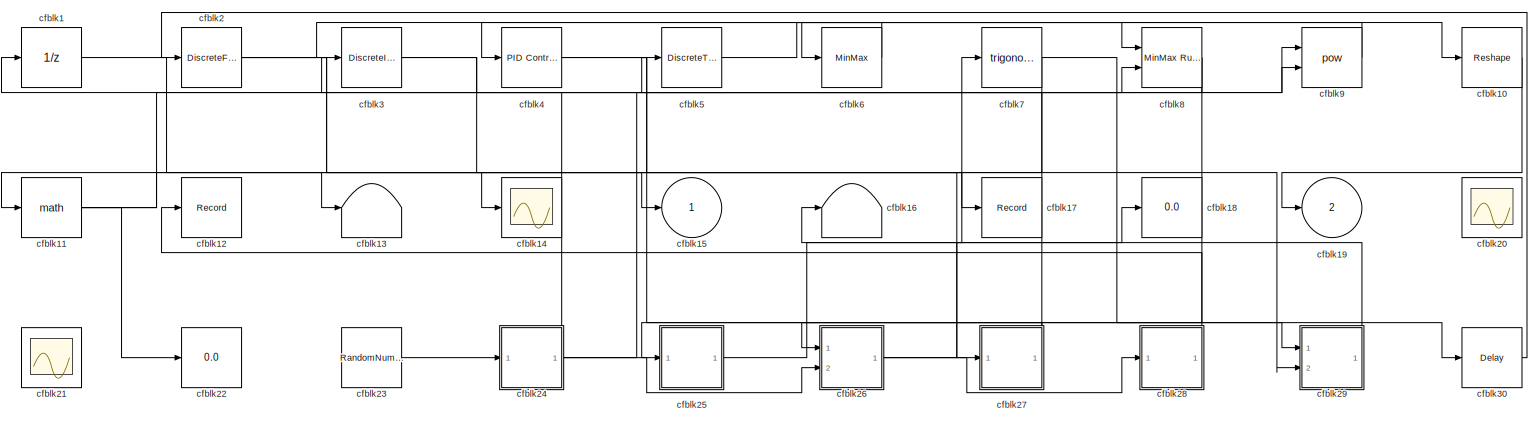
[diagram: root canvas - part 1/1, most of the canvas]
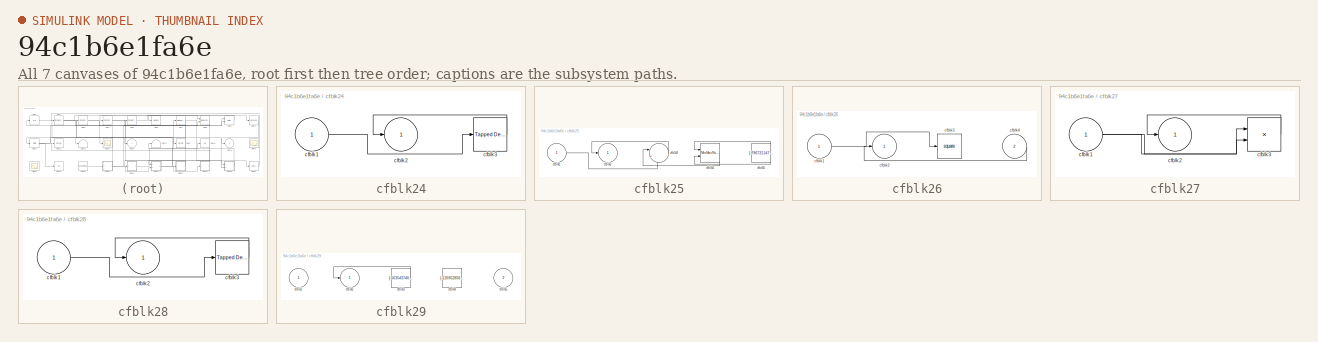
[diagram: thumbnail index - all 7 canvases of the model, root first then tree order]
MODEL slx_94c1b6e1fa6e
KIND model
CONFIG AbsTol = auto
CONFIG EnableMultiTasking = off
CONFIG FixedStep = auto
CONFIG MaxStep = auto
CONFIG MinStep = auto
CONFIG RelTol = 1e-3
CONFIG SampleTimeConstraint = Unconstrained
CONFIG SolverName = VariableStepAuto
CONFIG StartTime = 0.0
CONFIG StopTime = 10.0
BLOCK [UnitDelay] cfblk1
  HasFrameUpgradeWarning = on
BLOCK [Reshape] cfblk10
  Ports = [1, 1]
BLOCK [Math] cfblk11
  Ports = [1, 1]
BLOCK [Record] cfblk12
  FileSettingsInternal = {"entries":[{"content":{"excelSettings":{"content":{},"type":"Streamout.ExcelSettings"}},"type":"Streamout.FileSettingStorage","uuid":"a39cff4f-daf2-4c28-a5b7-ec255e5ac0f6"}],"packageUris":["http://schema.mathworks.com/mf0/streamout_blocks/R2020a"],"version":"1.0"}
  Ports = [1]
  SignalsInternal = {"entries":[{"content":{"signals":[{"content":{"blockPath":["sampleModel141/cfblk12"],"channel":[],"dimensions":[1],"domain":"sampleModel141/cfblk12","lineColor":"#77ac30","plots":[1],"port":1,"sid":[""],"signalID":5043,"signalName":"cfblk28"},"type":"RecordBlkView.Signal","uuid":"52644dd1-6354-4493-8342-73fe0015a786"}]},"type":"RecordBlkView.InputSignals","uuid":"56e0f7c8-4d96-4cb7-bdb7-98e7153da...<+97ch>
  VisualizationBindings = {"sparklinesplugin":{"info":[{"bindingParametersList":[],"subplotID":1}]}}
BLOCK [Terminator] cfblk13
BLOCK [Scope] cfblk14
  Floating = off
  NumInputPorts = 1
  Ports = [1]
BLOCK [Outport] cfblk15
BLOCK [Terminator] cfblk16
BLOCK [Record] cfblk17
  FileSettingsInternal = {"entries":[{"content":{"excelSettings":{"content":{},"type":"Streamout.ExcelSettings"}},"type":"Streamout.FileSettingStorage","uuid":"e404dd9b-bba9-46a7-9a10-97498adcddd8"}],"packageUris":["http://schema.mathworks.com/mf0/streamout_blocks/R2020a"],"version":"1.0"}
  Ports = [1]
  SignalsInternal = {"entries":[{"content":{"signals":[{"content":{"blockPath":["sampleModel141/cfblk17"],"channel":[],"dimensions":[1],"domain":"sampleModel141/cfblk17","lineColor":"#4dbeee","plots":[1],"port":1,"sid":[""],"signalID":5047,"signalName":"cfblk3"},"type":"RecordBlkView.Signal","uuid":"1d29c7ec-9dd9-4208-8596-fda88c1fd611"}]},"type":"RecordBlkView.InputSignals","uuid":"7f42791e-e920-4f00-9e91-acc0e9c6bb...<+96ch>
  VisualizationBindings = {"sparklinesplugin":{"info":[{"bindingParametersList":[],"subplotID":1}]}}
BLOCK [Display] cfblk18
  Decimation = 1
  Ports = [1]
BLOCK [Outport] cfblk19
  Port = 2
BLOCK [DiscreteFir] cfblk2
  InputPortMap = u0
  OutputPortMap = o0
  Ports = [1, 1]
  SampleTime = 1
BLOCK [Scope] cfblk20
  Floating = on
  NumInputPorts = 1
  Ports = []
BLOCK [Scope] cfblk21
  Floating = on
  NumInputPorts = 1
  Ports = []
BLOCK [Display] cfblk22
  Decimation = 1
  Ports = [1]
BLOCK [RandomNumber] cfblk23
  Mean = [51555.156439]
  SampleTime = 0.1
  Seed = [690428430.000000]
  Variance = [47411.369966]
BLOCK [SubSystem] cfblk24
  Ports = [1, 1]
  RequestExecContextInheritance = off
BLOCK [Inport] cfblk24/cfblk1
BLOCK [Outport] cfblk24/cfblk2
BLOCK [Reference] cfblk24/cfblk3  REF=simulink/Discrete/Tapped Delay
  Ports = [1, 1]
  SourceBlock = simulink/Discrete/Tapped Delay
  SourceProductBaseCode = SL
  SourceType = Tapped Delay Line
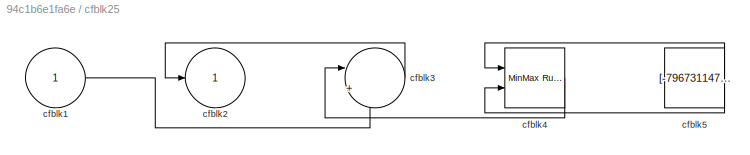
BLOCK [SubSystem] cfblk25
  Ports = [1, 1]
  RequestExecContextInheritance = off
BLOCK [Inport] cfblk25/cfblk1
BLOCK [Outport] cfblk25/cfblk2
BLOCK [Sum] cfblk25/cfblk3
  Inputs = |++
  Ports = [2, 1]
BLOCK [Reference] cfblk25/cfblk4  REF=simulink/Math
Operations/MinMax
Running
Resettable
  Ports = [2, 1]
  SourceBlock = simulink/Math\nOperations/MinMax\nRunning\nResettable
  SourceProductBaseCode = SL
  SourceType = MinMax Running Resettable
BLOCK [Constant] cfblk25/cfblk5
  SampleTime = 1
  Value = [-796731147.547210]
BLOCK [SubSystem] cfblk26
  Ports = [2, 1]
  RequestExecContextInheritance = off
BLOCK [Inport] cfblk26/cfblk1
BLOCK [Outport] cfblk26/cfblk2
BLOCK [Math] cfblk26/cfblk3
  Operator = square
  Ports = [1, 1]
BLOCK [Inport] cfblk26/cfblk4
  Port = 2
BLOCK [SubSystem] cfblk27
  Ports = [1, 1]
  RequestExecContextInheritance = off
BLOCK [Inport] cfblk27/cfblk1
BLOCK [Outport] cfblk27/cfblk2
BLOCK [Product] cfblk27/cfblk3
  Inputs = **
  Ports = [2, 1]
BLOCK [SubSystem] cfblk28
  Ports = [1, 1]
  RequestExecContextInheritance = off
BLOCK [Inport] cfblk28/cfblk1
BLOCK [Outport] cfblk28/cfblk2
BLOCK [Reference] cfblk28/cfblk3  REF=simulink/Discrete/Tapped Delay
  Ports = [1, 1]
  SourceBlock = simulink/Discrete/Tapped Delay
  SourceProductBaseCode = SL
  SourceType = Tapped Delay Line
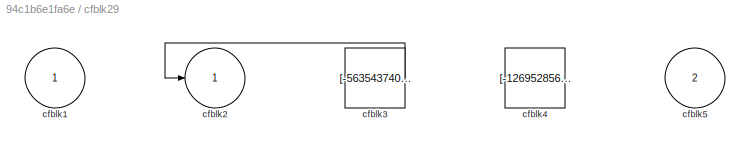
BLOCK [SubSystem] cfblk29
  Ports = [2, 1]
  RequestExecContextInheritance = off
BLOCK [Inport] cfblk29/cfblk1
BLOCK [Outport] cfblk29/cfblk2
BLOCK [Constant] cfblk29/cfblk3
  SampleTime = 1
  Value = [-563543740.597780]
BLOCK [Constant] cfblk29/cfblk4
  SampleTime = 1
  Value = [-126952856.963227]
BLOCK [Inport] cfblk29/cfblk5
  Port = 2
BLOCK [DiscreteIntegrator] cfblk3
  ICPrevOutput = DiscIntNeverNeededParam
  ICPrevScaledInput = DiscIntNeverNeededParam
  InitialConditionSetting = Auto
  Ports = [1, 1]
BLOCK [Delay] cfblk30
  InputPortMap = u0
  Ports = [1, 1]
  SampleTime = 1
BLOCK [Reference] cfblk4  REF=slpidlib/PID Controller
  Ports = [1, 1]
  SourceBlock = slpidlib/PID Controller
  SourceProductBaseCode = SL
  SourceType = PID 1dof
BLOCK [DiscreteTransferFcn] cfblk5
  InputPortMap = u0
  Ports = [1, 1]
  SampleTime = 1
BLOCK [MinMax] cfblk6
  Ports = [1, 1]
BLOCK [Trigonometry] cfblk7
  Ports = [1, 1]
BLOCK [Reference] cfblk8  REF=simulink/Math
Operations/MinMax
Running
Resettable
  Ports = [2, 1]
  SourceBlock = simulink/Math\nOperations/MinMax\nRunning\nResettable
  SourceProductBaseCode = SL
  SourceType = MinMax Running Resettable
BLOCK [Math] cfblk9
  Operator = pow
  Ports = [2, 1]
LINE cfblk10:1 -> cfblk19:1
NET cfblk11:1 -> cfblk14:1, cfblk22:1, cfblk9:1
LINE cfblk1:1 -> cfblk13:1
LINE cfblk23:1 -> cfblk24:1
LINE cfblk24/cfblk1:1 -> cfblk24/cfblk3:1
LINE cfblk24/cfblk3:1 -> cfblk24/cfblk2:1
NET cfblk24:1 -> cfblk26:2, cfblk3:1, cfblk9:2
LINE cfblk25/cfblk1:1 -> cfblk25/cfblk3:2
LINE cfblk25/cfblk3:1 -> cfblk25/cfblk2:1
LINE cfblk25/cfblk4:1 -> cfblk25/cfblk3:1
NET cfblk25/cfblk5:1 -> cfblk25/cfblk4:1, cfblk25/cfblk4:2
LINE cfblk25:1 -> cfblk7:1
LINE cfblk26/cfblk1:1 -> cfblk26/cfblk3:1
LINE cfblk26/cfblk4:1 -> cfblk26/cfblk2:1
NET cfblk26:1 -> cfblk18:1, cfblk28:1
NET cfblk27/cfblk1:1 -> cfblk27/cfblk3:1, cfblk27/cfblk3:2
LINE cfblk27/cfblk3:1 -> cfblk27/cfblk2:1
NET cfblk27:1 -> cfblk26:1, cfblk5:1
LINE cfblk28/cfblk1:1 -> cfblk28/cfblk3:1
LINE cfblk28/cfblk3:1 -> cfblk28/cfblk2:1
LINE cfblk28:1 -> cfblk12:1
LINE cfblk29/cfblk3:1 -> cfblk29/cfblk2:1
LINE cfblk29:1 -> cfblk16:1
NET cfblk2:1 -> cfblk10:1, cfblk15:1, cfblk27:1
LINE cfblk30:1 -> cfblk2:1
NET cfblk3:1 -> cfblk17:1, cfblk8:2
NET cfblk4:1 -> cfblk29:1, cfblk29:2
LINE cfblk5:1 -> cfblk8:1
LINE cfblk6:1 -> cfblk4:1
NET cfblk7:1 -> cfblk11:1, cfblk30:1
NET cfblk8:1 -> cfblk1:1, cfblk25:1
LINE cfblk9:1 -> cfblk6:1
note: NET lines group one-source signal fan-out (src -> all destinations, sorted); 1:1 wires keep LINE
